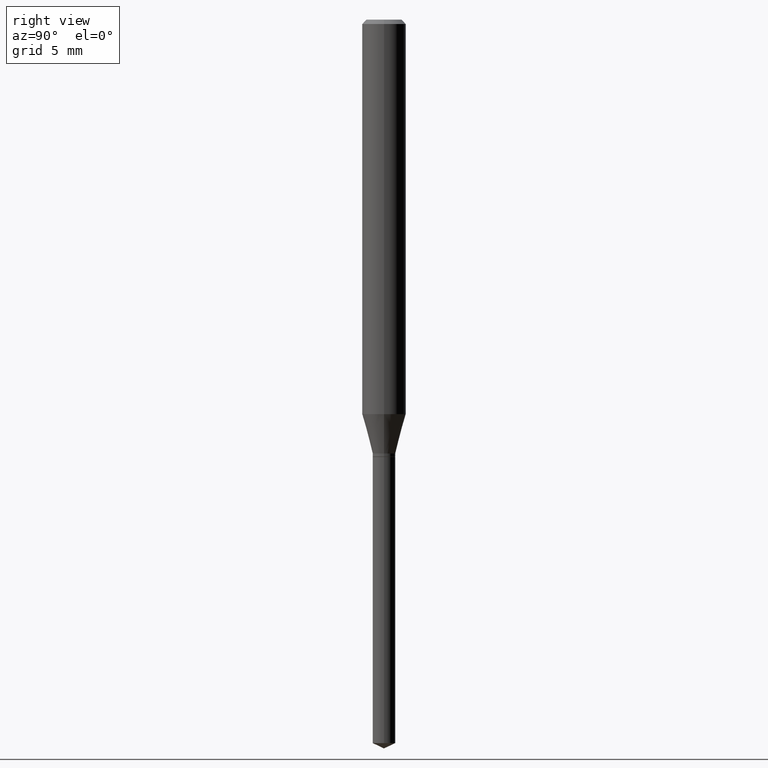
[diagram: clean part render]
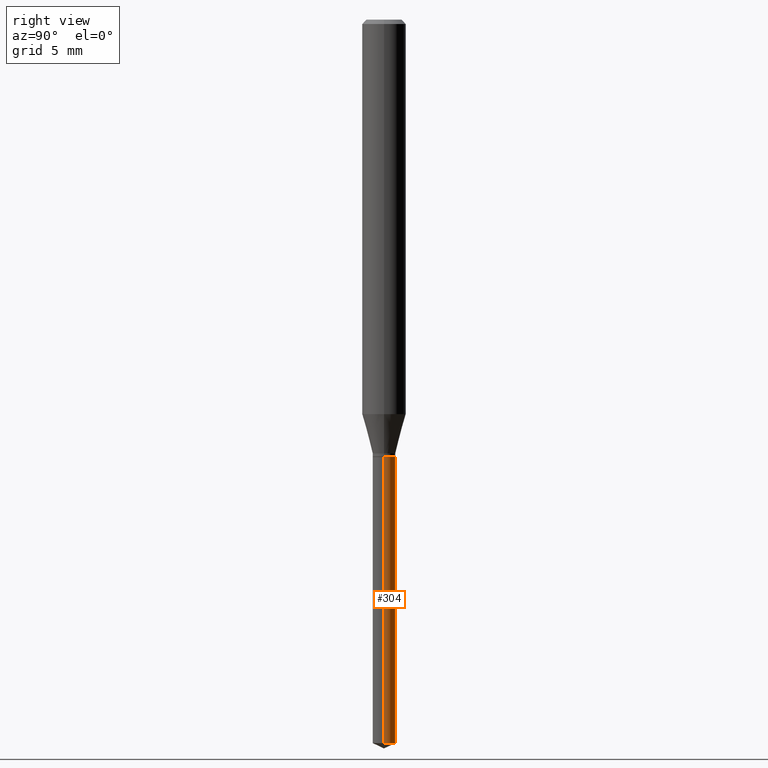
[diagram: same view with one face highlighted and labeled with its STEP entity id]
A machine part, right view. The second image highlights one B-rep face of the part: STEP entity #304.
In plain terms, the highlighted cylindrical surface (edge-blend (fillet) strip) has radius 0.7747 mm, axis along (-0, 0, 1).
Its self-contained STEP definition (entity closure, byte-faithful):
#4 = CARTESIAN_POINT ( 'NONE',  ( 0.03049999999999999586, -4.338514711646492641E-15, -1.181600000000000206 ) ) ;
#21 = EDGE_CURVE ( 'NONE', #289, #210, #424, .T. ) ;
#24 = DIRECTION ( 'NONE',  ( 1.000000000000000000, -6.982962677686269866E-15, 0.000000000000000000 ) ) ;
#27 = DIRECTION ( 'NONE',  ( -2.445468806185136877E-29, 3.491481338843145188E-15, 1.000000000000000000 ) ) ;
#66 = ORIENTED_EDGE ( 'NONE', *, *, #237, .F. ) ;
#85 = DIRECTION ( 'NONE',  ( -2.445468806185136597E-29, 3.491481338843145583E-15, 1.000000000000000000 ) ) ;
#93 = VERTEX_POINT ( 'NONE', #332 ) ;
#94 = CARTESIAN_POINT ( 'NONE',  ( 2.889565941388357118E-29, -4.125534349977060528E-15, -1.181599999999999984 ) ) ;
#95 = CARTESIAN_POINT ( 'NONE',  ( 0.03049999999999999586, -7.038049931010047308E-15, -1.954777616426272902 ) ) ;
#96 = AXIS2_PLACEMENT_3D ( 'NONE', #269, #264, #143 ) ;
#105 = VERTEX_POINT ( 'NONE', #95 ) ;
#106 = CARTESIAN_POINT ( 'NONE',  ( -0.03049999999999999586, -3.908818815570230173E-15, -1.181599999999999984 ) ) ;
#143 = DIRECTION ( 'NONE',  ( 1.000000000000000000, -6.982962677686254089E-15, 0.000000000000000000 ) ) ;
#145 = DIRECTION ( 'NONE',  ( 1.000000000000000000, -6.982962677686269866E-15, 0.000000000000000000 ) ) ;
#158 = VECTOR ( 'NONE', #455, 39.37007874015748143 ) ;
#190 = EDGE_CURVE ( 'NONE', #105, #93, #318, .T. ) ;
#210 = VERTEX_POINT ( 'NONE', #261 ) ;
#220 = FACE_OUTER_BOUND ( 'NONE', #483, .T. ) ;
#237 = EDGE_CURVE ( 'NONE', #105, #289, #308, .T. ) ;
#261 = CARTESIAN_POINT ( 'NONE',  ( -0.03049999999999999586, -5.258586425252008690E-15, -1.181600000000000206 ) ) ;
#264 = DIRECTION ( 'NONE',  ( -2.445468806185136597E-29, 3.491481338843145583E-15, 1.000000000000000000 ) ) ;
#269 = CARTESIAN_POINT ( 'NONE',  ( 4.780347683999384122E-29, -6.825069569340615984E-15, -1.954777616426272902 ) ) ;
#285 = CARTESIAN_POINT ( 'NONE',  ( 2.889565941388357678E-29, -4.125534349977061317E-15, -1.181600000000000206 ) ) ;
#289 = VERTEX_POINT ( 'NONE', #4 ) ;
#299 = CYLINDRICAL_SURFACE ( 'NONE', #380, 0.03049999999999999586 ) ;
#304 = ADVANCED_FACE ( 'NONE', ( #220 ), #299, .T. ) ;
#308 = LINE ( 'NONE', #374, #461 ) ;
#309 = DIRECTION ( 'NONE',  ( -2.445468806185136597E-29, 3.491481338843145583E-15, 1.000000000000000000 ) ) ;
#310 = ORIENTED_EDGE ( 'NONE', *, *, #340, .T. ) ;
#318 = CIRCLE ( 'NONE', #96, 0.03049999999999999586 ) ;
#323 = ORIENTED_EDGE ( 'NONE', *, *, #21, .F. ) ;
#332 = CARTESIAN_POINT ( 'NONE',  ( -0.03049999999999999586, -6.608354034933785630E-15, -1.954777616426272902 ) ) ;
#340 = EDGE_CURVE ( 'NONE', #93, #210, #485, .T. ) ;
#374 = CARTESIAN_POINT ( 'NONE',  ( 0.03049999999999999586, -4.338514711646491852E-15, -1.181599999999999984 ) ) ;
#380 = AXIS2_PLACEMENT_3D ( 'NONE', #94, #309, #145 ) ;
#400 = ORIENTED_EDGE ( 'NONE', *, *, #190, .T. ) ;
#424 = CIRCLE ( 'NONE', #484, 0.03049999999999999586 ) ;
#455 = DIRECTION ( 'NONE',  ( -2.445468806185136877E-29, 3.491481338843145188E-15, 1.000000000000000000 ) ) ;
#461 = VECTOR ( 'NONE', #27, 39.37007874015748143 ) ;
#483 = EDGE_LOOP ( 'NONE', ( #400, #310, #323, #66 ) ) ;
#484 = AXIS2_PLACEMENT_3D ( 'NONE', #285, #85, #24 ) ;
#485 = LINE ( 'NONE', #106, #158 ) ;